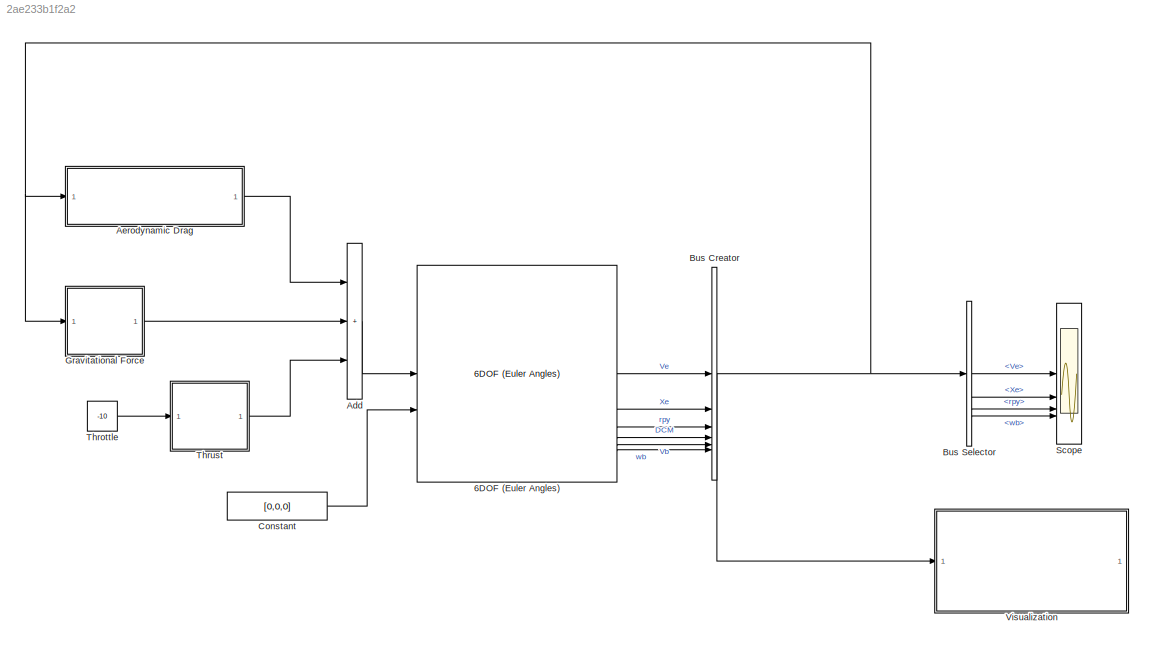
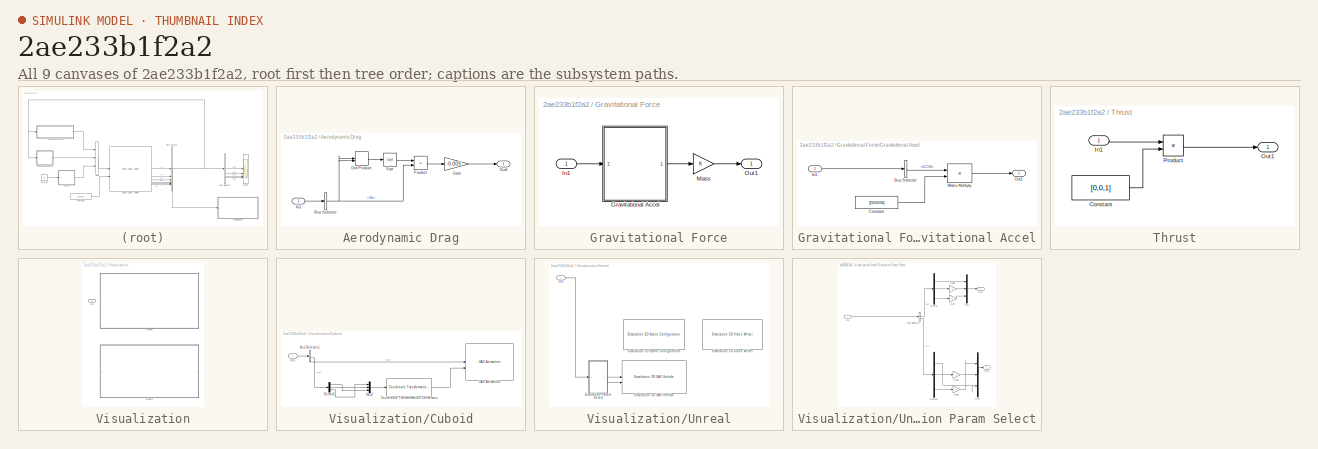
[diagram: thumbnail index - all 9 canvases of the model, root first then tree order]
MODEL slx_2ae233b1f2a2
KIND model
CONFIG AbsTol = auto
CONFIG EnableMultiTasking = off
CONFIG FixedStep = auto
CONFIG MaxStep = auto
CONFIG MinStep = auto
CONFIG RelTol = 1e-3
CONFIG SampleTimeConstraint = Unconstrained
CONFIG SolverName = VariableStepAuto
CONFIG StartTime = 0.0
CONFIG StopTime = 10.0
BLOCK [Reference] 6DOF (Euler Angles)  REF=shared6dof/6DOF (Euler Angles)
  LibrarySourceBlock = aerolib6dof2/6DOF (Euler Angles)
  SourceBlock = shared6dof/6DOF (Euler Angles)
  aMode = 0
  rep = Euler Angles
  vre_flag = off
BLOCK [Sum] Add
  IconShape = rectangular
  Inputs = +++
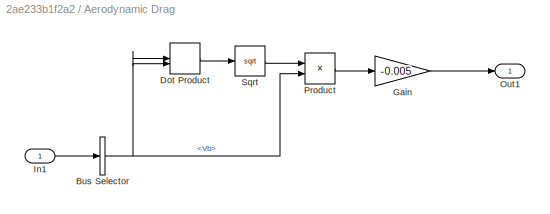
BLOCK [SubSystem] Aerodynamic Drag
BLOCK [BusSelector] Aerodynamic Drag/Bus Selector
  OutputSignals = Vb
BLOCK [DotProduct] Aerodynamic Drag/Dot Product
  OutDataTypeStr = Inherit: Inherit via internal rule
BLOCK [Gain] Aerodynamic Drag/Gain
  Gain = -0.005
BLOCK [Inport] Aerodynamic Drag/In1
BLOCK [Outport] Aerodynamic Drag/Out1
BLOCK [Product] Aerodynamic Drag/Product
BLOCK [Sqrt] Aerodynamic Drag/Sqrt
BLOCK [BusCreator] Bus Creator
  DisplayOption = bar
  InheritFromInputs = on
  Inputs = 6
BLOCK [BusSelector] Bus Selector
  OutputSignals = Ve,Xe,rpy,wb
BLOCK [Constant] Constant
  Value = [0,0,0]
BLOCK [SubSystem] Gravitational Force
BLOCK [SubSystem] Gravitational Force/Gravitational Accel
BLOCK [BusSelector] Gravitational Force/Gravitational Accel/Bus Selector
  OutputSignals = DCM
BLOCK [Constant] Gravitational Force/Gravitational Accel/Constant
  Value = [0;0;9.81]
BLOCK [Inport] Gravitational Force/Gravitational Accel/In1
BLOCK [Product] Gravitational Force/Gravitational Accel/Matrix Multiply
  Multiplication = Matrix(*)
BLOCK [Outport] Gravitational Force/Gravitational Accel/Out1
BLOCK [Inport] Gravitational Force/In1
BLOCK [Gain] Gravitational Force/Mass
BLOCK [Outport] Gravitational Force/Out1
BLOCK [Scope] Scope
  Floating = off
  NumInputPorts = 4
  ScopeSpecificationString = Simulink.scopes.TimeScopeBlockCfg('CurrentConfiguration', extmgr.ConfigurationSet(extmgr.Configuration('Core','General UI',true,'DisplayFullSourceName',false,'ShowMainToolbar',true,'FigureColor',[0.129411764705882 0.129411764705882 0.129411764705882]),extmgr.Configuration('Sources','WiredSimulink',true,'DataLogging',false,'DataLoggingVariableName','ScopeData','DataLoggingLimitDataPoints',false,'Da...<+6090ch>
BLOCK [Constant] Throttle
  Value = -10
BLOCK [SubSystem] Thrust
BLOCK [Constant] Thrust/Constant
  Value = [0,0,1]
BLOCK [Inport] Thrust/In1
BLOCK [Outport] Thrust/Out1
BLOCK [Product] Thrust/Product
BLOCK [SubSystem] Visualization
  LabelModeActiveChoice = Subsystem
  Variant = on
  VariantControlMode = label
BLOCK [SubSystem] Visualization/Cuboid
  VariantControl = Subsystem1
BLOCK [BusSelector] Visualization/Cuboid/Bus Selector1
  OutputSignals = Xe,rpy
BLOCK [Reference] Visualization/Cuboid/Coordinate Transformation Conversion  REF=robotcorelib/Coordinate Transformation Conversion
  SourceBlock = robotcorelib/Coordinate Transformation Conversion
  SourceType = robotics.slcore.internal.block.CoordinateTransformationConversion
BLOCK [Demux] Visualization/Cuboid/Demux1
  Outputs = 3
BLOCK [Inport] Visualization/Cuboid/In1
BLOCK [Mux] Visualization/Cuboid/Mux2
  DisplayOption = bar
  Inputs = 3
BLOCK [Reference] Visualization/Cuboid/UAV Animation  REF=uavutilslib/UAV Animation
  SourceBlock = uavutilslib/UAV Animation
  SourceType = uav.sluav.internal.system.UAVAnimation
BLOCK [Inport] Visualization/In1
BLOCK [SubSystem] Visualization/Unreal
  VariantControl = Subsystem
BLOCK [Inport] Visualization/Unreal/In1
BLOCK [Reference] Visualization/Unreal/Simulation 3D Scene Configuration  REF=sim3dlib/Simulation 3D Scene Configuration
  LibrarySourceBlock = uavsim3dlib/Simulation 3D Scene Configuration
  Priority = 0
  SourceBlock = sim3dlib/Simulation 3D Scene Configuration
  SourceType = Simulation 3D Scene Configuration
BLOCK [Reference] Visualization/Unreal/Simulation 3D UAV Vehicle  REF=uavsim3dlib/Simulation 3D UAV Vehicle
  Priority = -1
  SourceBlock = uavsim3dlib/Simulation 3D UAV Vehicle
  SourceType = Simulation 3D UAV Vehicle
BLOCK [Reference] Visualization/Unreal/Simulation 3D Video Writer  REF=sim3dlib/Simulation 3D Video Writer
  Commented = on
  LibrarySourceBlock = sl3dlib/Simulation 3D/Utilities/Simulation 3D Video Writer
  Priority = 1
  SourceBlock = sim3dlib/Simulation 3D Video Writer
  SourceType = Simulation3DVideoWriterSystem
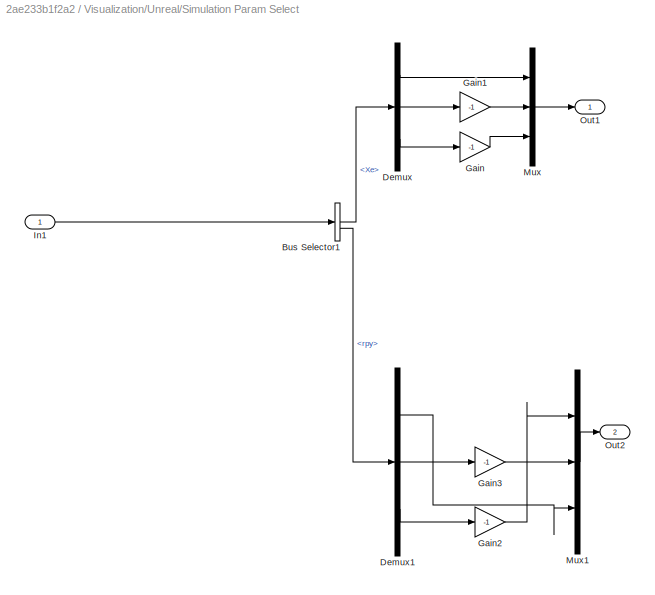
BLOCK [SubSystem] Visualization/Unreal/Simulation Param Select
BLOCK [BusSelector] Visualization/Unreal/Simulation Param Select/Bus Selector1
  OutputSignals = Xe,rpy
BLOCK [Demux] Visualization/Unreal/Simulation Param Select/Demux
  Outputs = 3
BLOCK [Demux] Visualization/Unreal/Simulation Param Select/Demux1
  Outputs = 3
BLOCK [Gain] Visualization/Unreal/Simulation Param Select/Gain
  Gain = -1
BLOCK [Gain] Visualization/Unreal/Simulation Param Select/Gain1
  Gain = -1
BLOCK [Gain] Visualization/Unreal/Simulation Param Select/Gain2
  Gain = -1
BLOCK [Gain] Visualization/Unreal/Simulation Param Select/Gain3
  Gain = -1
BLOCK [Inport] Visualization/Unreal/Simulation Param Select/In1
BLOCK [Mux] Visualization/Unreal/Simulation Param Select/Mux
  DisplayOption = bar
  Inputs = 3
BLOCK [Mux] Visualization/Unreal/Simulation Param Select/Mux1
  DisplayOption = bar
  Inputs = 3
BLOCK [Outport] Visualization/Unreal/Simulation Param Select/Out1
BLOCK [Outport] Visualization/Unreal/Simulation Param Select/Out2
  Port = 2
LINE 6DOF (Euler Angles):1 -> Bus Creator:1
LINE 6DOF (Euler Angles):2 -> Bus Creator:2
LINE 6DOF (Euler Angles):3 -> Bus Creator:3
LINE 6DOF (Euler Angles):4 -> Bus Creator:4
LINE 6DOF (Euler Angles):5 -> Bus Creator:5
LINE 6DOF (Euler Angles):6 -> Bus Creator:6
LINE Add:1 -> 6DOF (Euler Angles):1
NET Aerodynamic Drag/Bus Selector:1 -> Aerodynamic Drag/Dot Product:1, Aerodynamic Drag/Dot Product:2, Aerodynamic Drag/Product:2
LINE Aerodynamic Drag/Dot Product:1 -> Aerodynamic Drag/Sqrt:1
LINE Aerodynamic Drag/Gain:1 -> Aerodynamic Drag/Out1:1
LINE Aerodynamic Drag/In1:1 -> Aerodynamic Drag/Bus Selector:1
LINE Aerodynamic Drag/Product:1 -> Aerodynamic Drag/Gain:1
LINE Aerodynamic Drag/Sqrt:1 -> Aerodynamic Drag/Product:1
LINE Aerodynamic Drag:1 -> Add:1
NET Bus Creator:1 -> Aerodynamic Drag:1, Bus Selector:1, Gravitational Force:1, Visualization:1
LINE Bus Selector:1 -> Scope:1
LINE Bus Selector:2 -> Scope:2
LINE Bus Selector:3 -> Scope:3
LINE Bus Selector:4 -> Scope:4
LINE Constant:1 -> 6DOF (Euler Angles):2
LINE Gravitational Force/Gravitational Accel/Bus Selector:1 -> Gravitational Force/Gravitational Accel/Matrix Multiply:1
LINE Gravitational Force/Gravitational Accel/Constant:1 -> Gravitational Force/Gravitational Accel/Matrix Multiply:2
LINE Gravitational Force/Gravitational Accel/In1:1 -> Gravitational Force/Gravitational Accel/Bus Selector:1
LINE Gravitational Force/Gravitational Accel/Matrix Multiply:1 -> Gravitational Force/Gravitational Accel/Out1:1
LINE Gravitational Force/Gravitational Accel:1 -> Gravitational Force/Mass:1
LINE Gravitational Force/In1:1 -> Gravitational Force/Gravitational Accel:1
LINE Gravitational Force/Mass:1 -> Gravitational Force/Out1:1
LINE Gravitational Force:1 -> Add:2
LINE Throttle:1 -> Thrust:1
LINE Thrust/Constant:1 -> Thrust/Product:2
LINE Thrust/In1:1 -> Thrust/Product:1
LINE Thrust/Product:1 -> Thrust/Out1:1
LINE Thrust:1 -> Add:3
LINE Visualization/Cuboid/Bus Selector1:1 -> Visualization/Cuboid/UAV Animation:1
LINE Visualization/Cuboid/Bus Selector1:2 -> Visualization/Cuboid/Demux1:1
LINE Visualization/Cuboid/Coordinate Transformation Conversion:1 -> Visualization/Cuboid/UAV Animation:2
LINE Visualization/Cuboid/Demux1:1 -> Visualization/Cuboid/Mux2:3
LINE Visualization/Cuboid/Demux1:2 -> Visualization/Cuboid/Mux2:2
LINE Visualization/Cuboid/Demux1:3 -> Visualization/Cuboid/Mux2:1
LINE Visualization/Cuboid/In1:1 -> Visualization/Cuboid/Bus Selector1:1
LINE Visualization/Cuboid/Mux2:1 -> Visualization/Cuboid/Coordinate Transformation Conversion:1
LINE Visualization/Unreal/In1:1 -> Visualization/Unreal/Simulation Param Select:1
LINE Visualization/Unreal/Simulation Param Select/Bus Selector1:1 -> Visualization/Unreal/Simulation Param Select/Demux:1
LINE Visualization/Unreal/Simulation Param Select/Bus Selector1:2 -> Visualization/Unreal/Simulation Param Select/Demux1:1
LINE Visualization/Unreal/Simulation Param Select/Demux1:1 -> Visualization/Unreal/Simulation Param Select/Mux1:3
LINE Visualization/Unreal/Simulation Param Select/Demux1:2 -> Visualization/Unreal/Simulation Param Select/Gain3:1
LINE Visualization/Unreal/Simulation Param Select/Demux1:3 -> Visualization/Unreal/Simulation Param Select/Gain2:1
LINE Visualization/Unreal/Simulation Param Select/Demux:1 -> Visualization/Unreal/Simulation Param Select/Mux:1
LINE Visualization/Unreal/Simulation Param Select/Demux:2 -> Visualization/Unreal/Simulation Param Select/Gain1:1
LINE Visualization/Unreal/Simulation Param Select/Demux:3 -> Visualization/Unreal/Simulation Param Select/Gain:1
LINE Visualization/Unreal/Simulation Param Select/Gain1:1 -> Visualization/Unreal/Simulation Param Select/Mux:2
LINE Visualization/Unreal/Simulation Param Select/Gain2:1 -> Visualization/Unreal/Simulation Param Select/Mux1:1
LINE Visualization/Unreal/Simulation Param Select/Gain3:1 -> Visualization/Unreal/Simulation Param Select/Mux1:2
LINE Visualization/Unreal/Simulation Param Select/Gain:1 -> Visualization/Unreal/Simulation Param Select/Mux:3
LINE Visualization/Unreal/Simulation Param Select/In1:1 -> Visualization/Unreal/Simulation Param Select/Bus Selector1:1
LINE Visualization/Unreal/Simulation Param Select/Mux1:1 -> Visualization/Unreal/Simulation Param Select/Out2:1
LINE Visualization/Unreal/Simulation Param Select/Mux:1 -> Visualization/Unreal/Simulation Param Select/Out1:1
LINE Visualization/Unreal/Simulation Param Select:1 -> Visualization/Unreal/Simulation 3D UAV Vehicle:1
LINE Visualization/Unreal/Simulation Param Select:2 -> Visualization/Unreal/Simulation 3D UAV Vehicle:2
note: NET lines group one-source signal fan-out (src -> all destinations, sorted); 1:1 wires keep LINE
